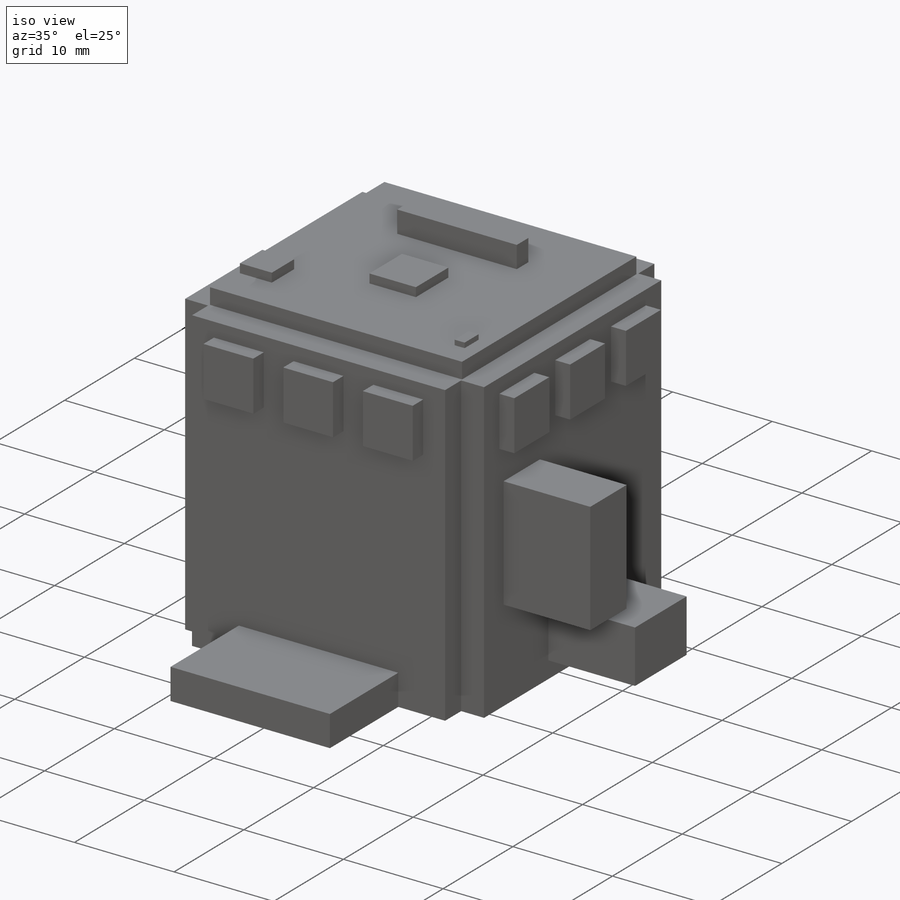
[diagram: iso view]
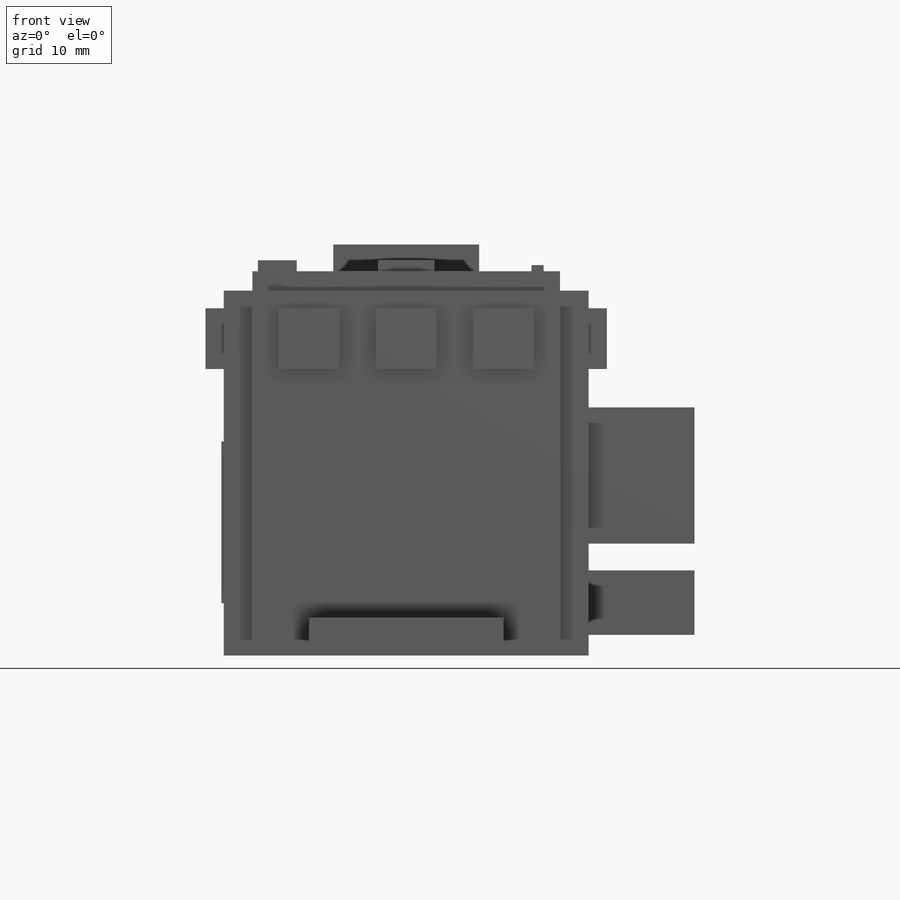
[diagram: front view]
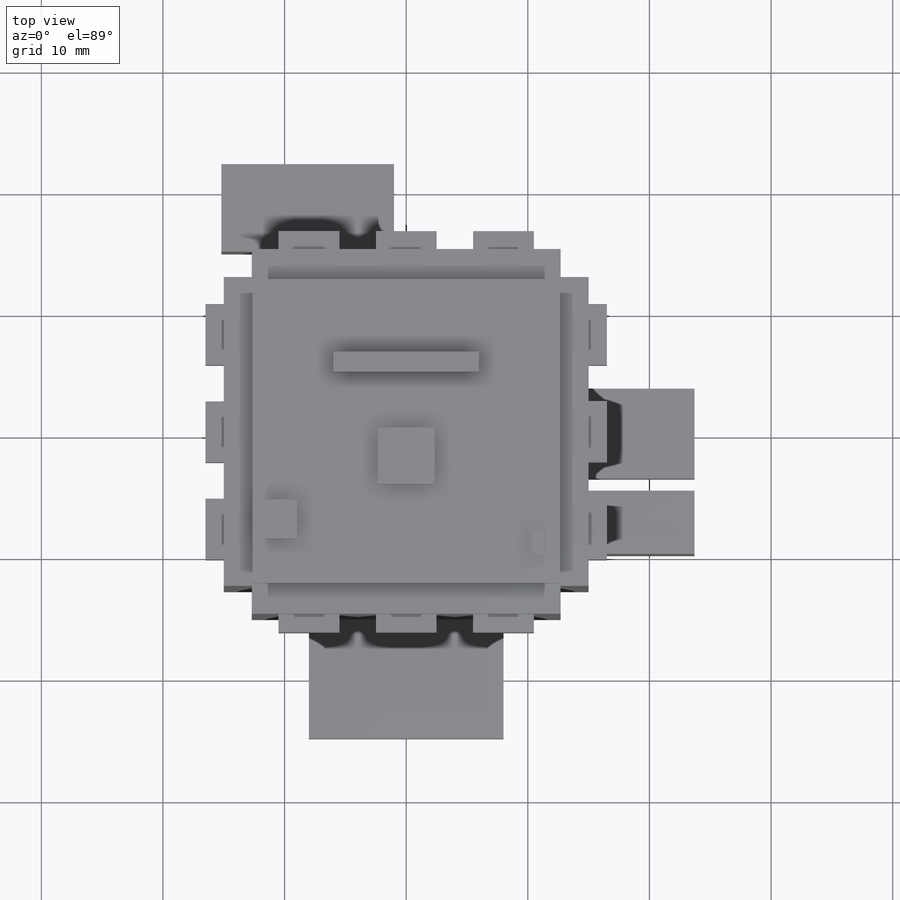
[diagram: top view]
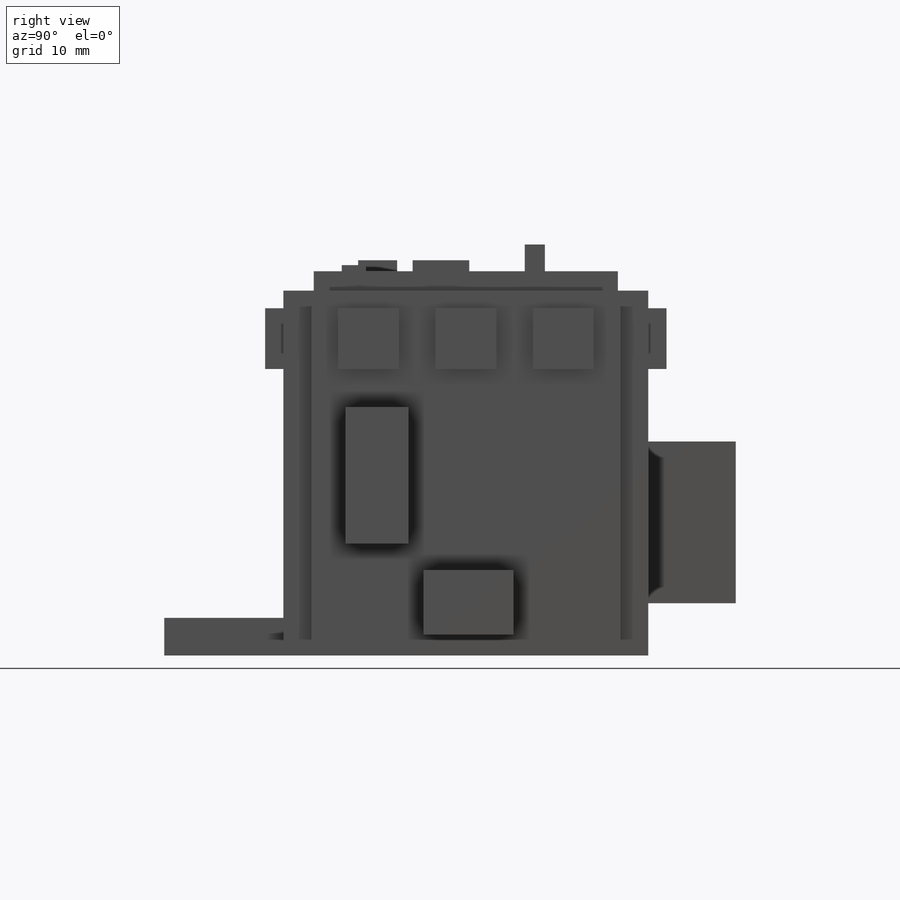
[diagram: right view]
SOLIDWORKS PART (.sldprt)
format: sldprt  version: not decoded by parser v0  size: 457,728 bytes
history: native  units: mm
features: sketch x14, extrude x10, cut_extrude x2, material x1, mirror x1, surface_op x1, pattern_circular x1, delete_body x1 (+13 scaffold rows collapsed)
feature tree (44):
  scaffold x13  (default folders/planes/origin — collapsed)
  material  "Material <not specified>"
  sketch  "Sketch1"  dims[D1=30.0mm D2=30.0mm]
  extrude  "Boss-Extrude1"  Depth=30mm
  sketch  "Sketch2"  dims[D1=5.0mm D2=28.56mm D3=13.0mm]
  extrude  "Boss-Extrude2"  Depth=1.5mm
  mirror  "Mirror1"
  sketch  "Sketch3"
  sketch  "Sketch4"
  surface_op  "Surface-Extrude1"
  pattern_circular  "CirPattern1"  Count=2 Angle=90deg
  sketch  "Sketch5"  dims[D1=2.3mm]
  cut_extrude  "Cut-Extrude1"  [1 undecoded]
  sketch  "Sketch6"  dims[D1=16.0mm D2=3.1mm]
  extrude  "Boss-Extrude3"  Depth=9.8mm
  sketch  "Sketch7"  dims[D1=25.3mm D2=25.0mm]
  extrude  "Boss-Extrude4"  Depth=1.6mm
  sketch  "Sketch8"  dims[D1=5.2mm D2=11.2mm D3=5.3mm D4=7.4mm D5=7.0mm D6=18.48mm D7=20.4mm D8=10.3mm]
  extrude  "Boss-Extrude5"  Depth=8.7mm
  sketch  "Sketch9"  dims[D1=14.2mm D2=13.3mm D3=17.6mm D4=16.0mm]
  extrude  "Boss-Extrude6"  Depth=7.2mm
  sketch  "Sketch10"  dims[D1=16.8mm D2=19.0mm]
  cut_extrude  "Cut-Extrude2"  Depth=1.7mm
  sketch  "Sketch11"  dims[D1=1.65mm D2=21.5mm D3=12.0mm]
  extrude  "Boss-Extrude7"  Depth=2.2mm
  sketch  "Sketch12"  dims[D1=4.65mm D2=4.65mm D3=15.28mm]
  extrude  "Boss-Extrude8"  Depth=0.9mm
  delete_body  "Body-Delete1"
  sketch  "Sketch13"  dims[D1=3.2mm D2=6.0mm D3=9.35mm]
  extrude  "Boss-Extrude9"  Depth=0.9mm
  sketch  "Sketch14"  dims[D1=2.0mm D2=1.0mm D3=4.7mm D4=6.8mm]
  extrude  "Boss-Extrude10"  Depth=0.5mm
decode coverage: 24 of 30 modeling features carry decoded parameters
note: 1 parameter value undecoded
note: suppression state not decoded; provenance and decode notes live in map.json
